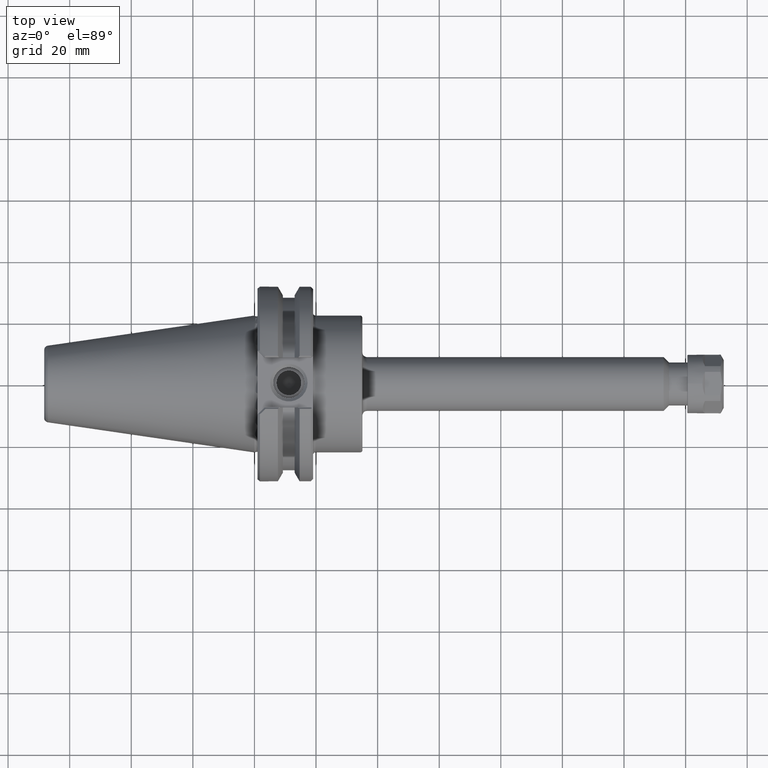
[diagram: clean part render]
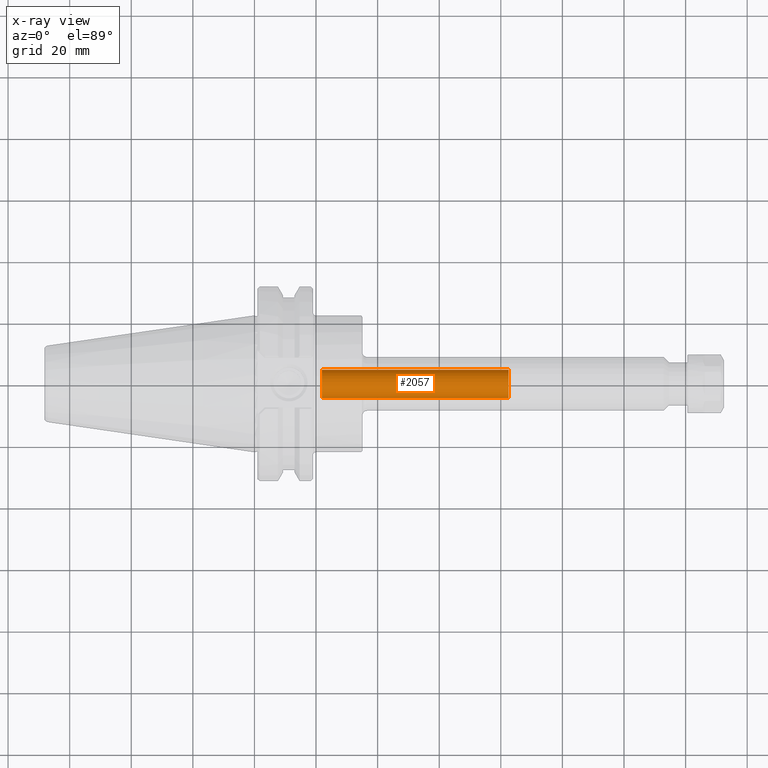
[diagram: x-ray — body ghosted, one internal face saturated and labeled with its STEP entity id]
A machine part, top view, then the same camera in x-ray: the body is ghosted and one INTERNAL B-rep face — a face not visible from any outside direction — is saturated and labeled: STEP entity #2057.
In plain terms, the highlighted cylindrical surface (bore or boss wall) has radius 4.572 mm, axis along (-1, 0, 0).
Its self-contained STEP definition (entity closure, byte-faithful):
#129=CYLINDRICAL_SURFACE('',#2211,0.18);
#449=FACE_BOUND('',#654,.T.);
#508=FACE_OUTER_BOUND('',#653,.T.);
#653=EDGE_LOOP('',(#1469));
#654=EDGE_LOOP('',(#1470));
#839=CIRCLE('',#2210,0.18);
#840=CIRCLE('',#2212,0.18);
#964=VERTEX_POINT('',#3083);
#965=VERTEX_POINT('',#3086);
#1174=EDGE_CURVE('',#964,#964,#839,.T.);
#1175=EDGE_CURVE('',#965,#965,#840,.T.);
#1469=ORIENTED_EDGE('',*,*,#1175,.F.);
#1470=ORIENTED_EDGE('',*,*,#1174,.F.);
#2057=ADVANCED_FACE('',(#508,#449),#129,.F.);
#2210=AXIS2_PLACEMENT_3D('',#3084,#2483,#2484);
#2211=AXIS2_PLACEMENT_3D('',#3085,#2485,#2486);
#2212=AXIS2_PLACEMENT_3D('',#3087,#2487,#2488);
#2483=DIRECTION('center_axis',(-1.,0.,0.));
#2484=DIRECTION('ref_axis',(0.,-1.,0.));
#2485=DIRECTION('center_axis',(-1.,0.,0.));
#2486=DIRECTION('ref_axis',(0.,-1.,0.));
#2487=DIRECTION('center_axis',(1.,0.,0.));
#2488=DIRECTION('ref_axis',(0.,-1.,0.));
#3083=CARTESIAN_POINT('',(3.248,-0.18,0.));
#3084=CARTESIAN_POINT('Origin',(3.248,0.,0.));
#3085=CARTESIAN_POINT('Origin',(0.2805,0.,0.));
#3086=CARTESIAN_POINT('',(0.863171861688802,0.18,2.20436423846524E-17));
#3087=CARTESIAN_POINT('Origin',(0.863171861688802,0.,0.));